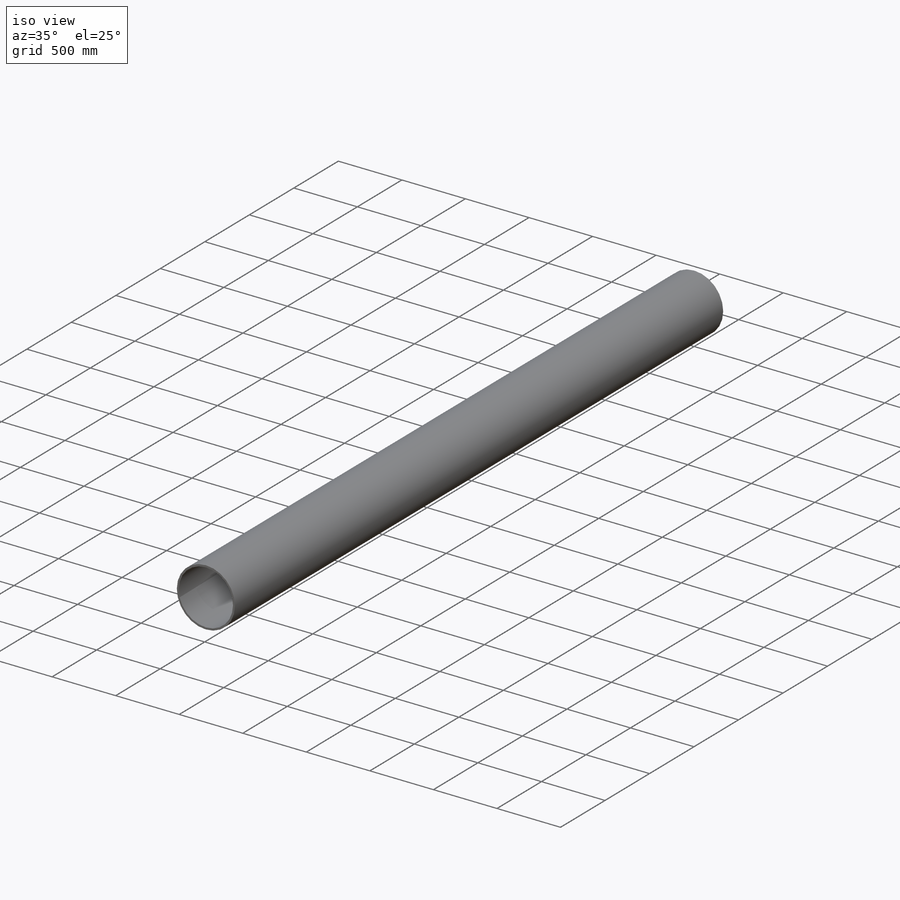
[diagram: iso view]
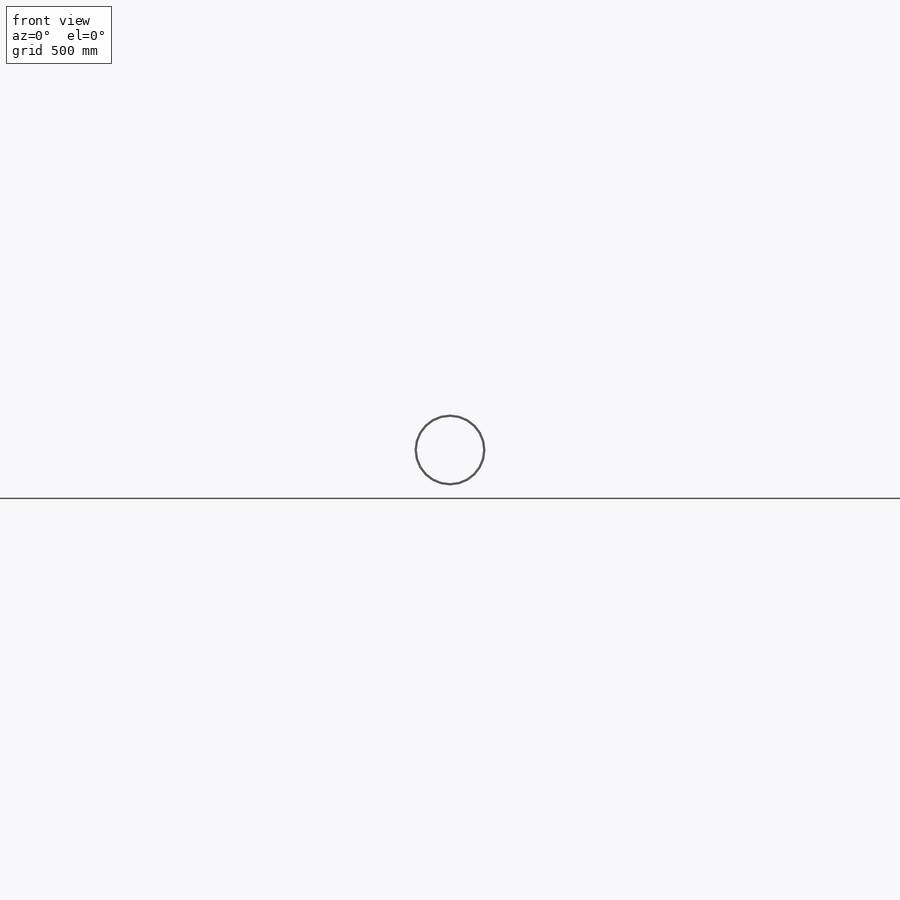
[diagram: front view]
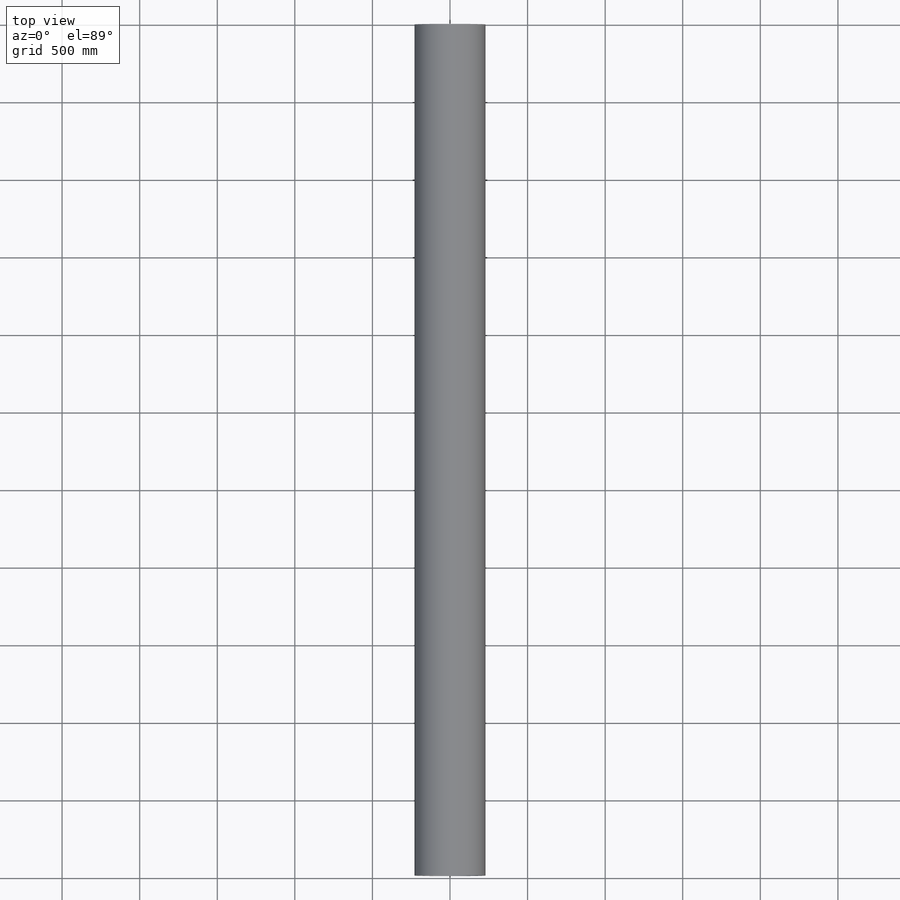
[diagram: top view]
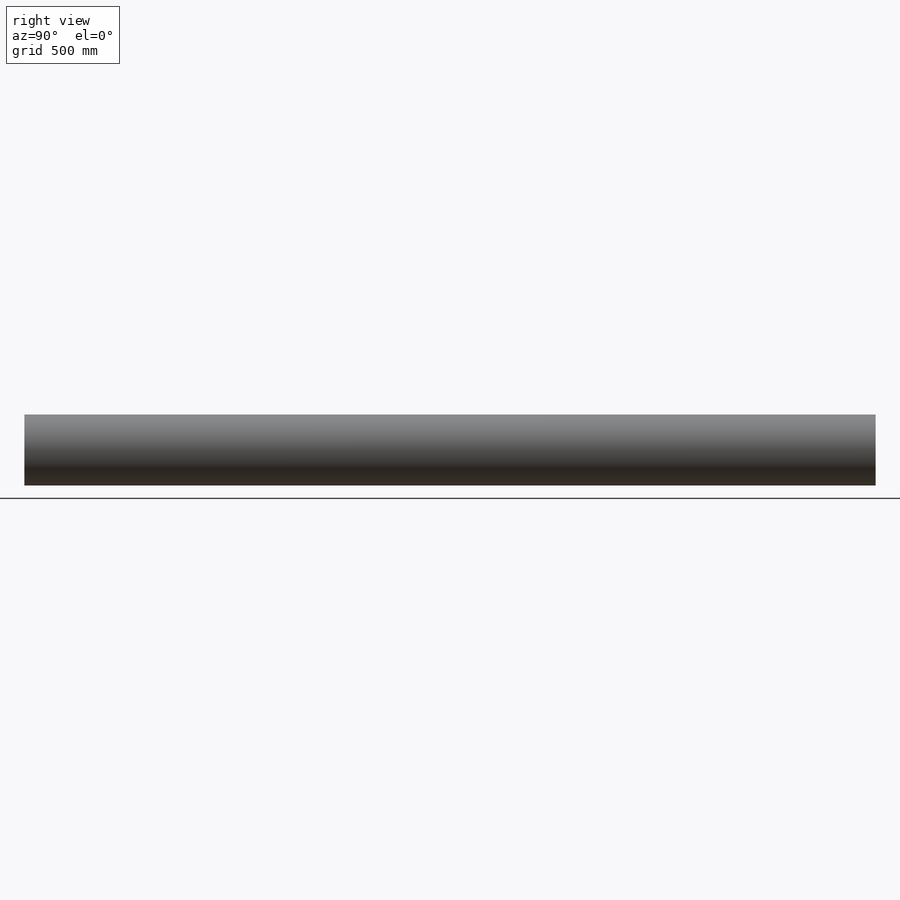
[diagram: right view]
SOLIDWORKS PART (.sldprt)
format: sldprt  version: not decoded by parser v0  size: 525,824 bytes
history: native  units: mm
features: sketch x4, cut_extrude x2, material x1, plane x1, extrude x1 + 1 further entry (+14 scaffold rows collapsed)
feature tree (24):
  scaffold x14  (default folders/planes/origin — collapsed)
  material  "Material <not specified>"
  plane  "Side"
  "Design Table"
  sketch  "PipeSketch"  dims[OuterDiameter=218.948mm D2=~127.184556mm InnerDiameter=206.248mm Wall Thickness=2.7686mm]
  extrude  "Extrusion"  Depth=5486.4mm Length=5486.4mm
  sketch  "FilterSketch"  dims[NominalDiameter=203.2mm]
  sketch  "Sketch1"
  cut_extrude  "Cut-Extrude1"  Depth=10mm
  sketch  "Sketch2"
  cut_extrude  "Cut-Extrude2"  Depth=10mm
decode coverage: 5 of 7 modeling features carry decoded parameters; 1 rows unclassified (native names shown)
note: ~ marks probable driven/reference dimensions
note: suppression state not decoded; provenance and decode notes live in map.json
